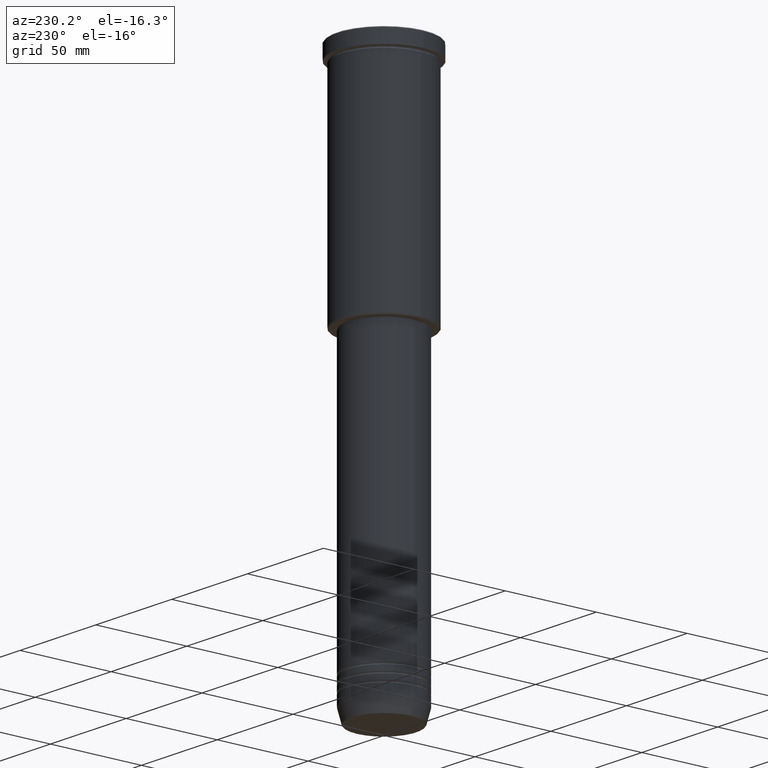
[diagram: clean part render]
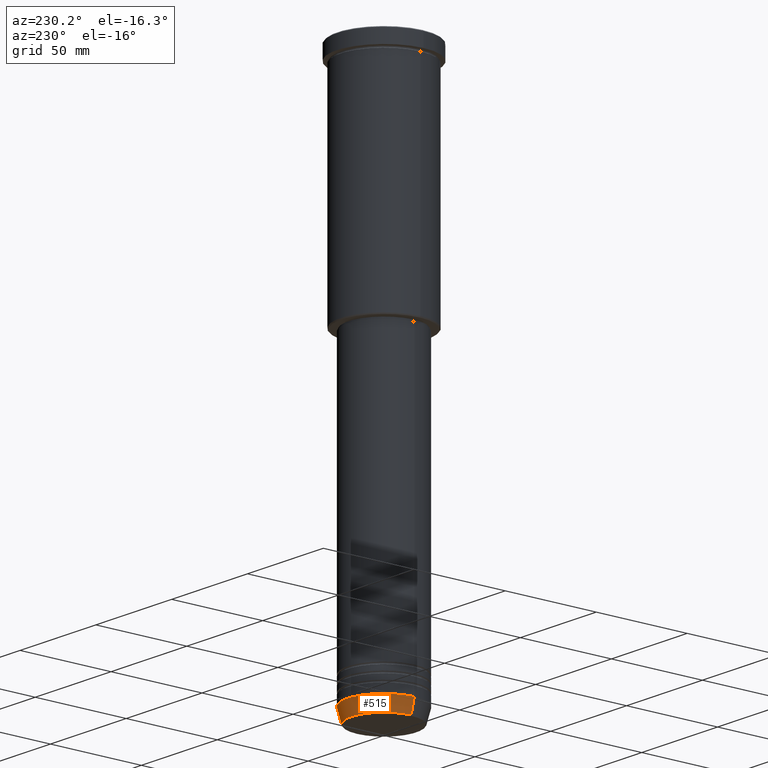
[diagram: same view with one face highlighted and labeled with its STEP entity id]
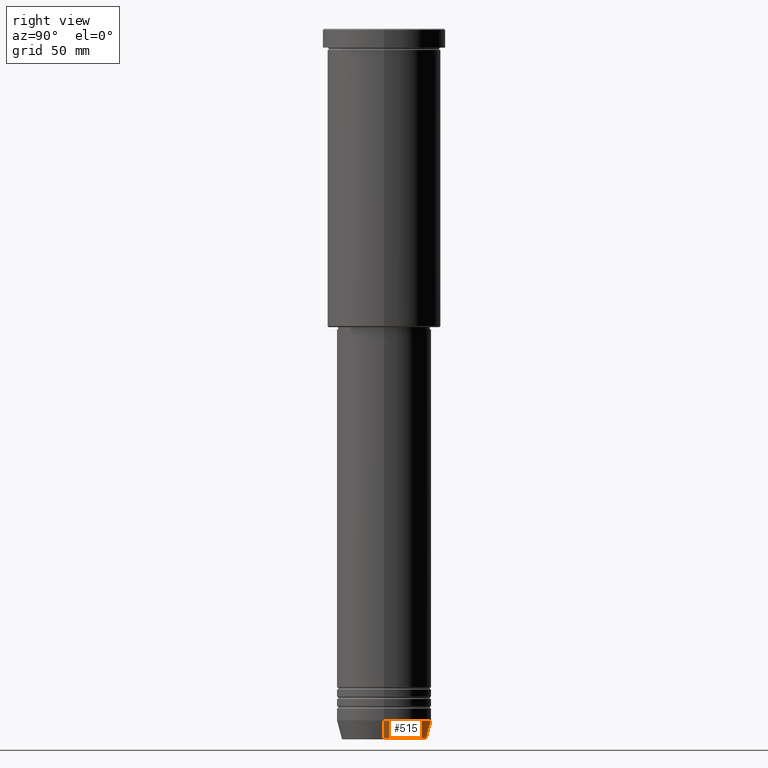
[diagram: same view with one face highlighted and labeled with its STEP entity id]
A machine part, auxiliary view. The second image highlights one B-rep face of the part: STEP entity #515.
A second angle (right view) of the same face is appended — the face is thin or edge-on in the first view.
In plain terms, the highlighted conical surface has half-angle 15 deg.
Its self-contained STEP definition (entity closure, byte-faithful):
#11 = LINE ( 'NONE', #305, #380 ) ;
#52 = EDGE_CURVE ( 'NONE', #358, #414, #973, .T. ) ;
#92 = CARTESIAN_POINT ( 'NONE',  ( 0.000000000000000000, 0.000000000000000000, -299.6294095225512137 ) ) ;
#153 = FACE_OUTER_BOUND ( 'NONE', #1173, .T. ) ;
#163 = EDGE_CURVE ( 'NONE', #617, #690, #11, .T. ) ;
#166 = CARTESIAN_POINT ( 'NONE',  ( 0.000000000000000000, 0.000000000000000000, -292.0000000000000000 ) ) ;
#219 = CONICAL_SURFACE ( 'NONE', #583, 20.00000000000000355, 0.2617993877991499629 ) ;
#228 = DIRECTION ( 'NONE',  ( 1.000000000000000000, 0.000000000000000000, 0.000000000000000000 ) ) ;
#244 = CARTESIAN_POINT ( 'NONE',  ( 20.00000000000000355, 0.000000000000000000, -292.0000000000000000 ) ) ;
#280 = DIRECTION ( 'NONE',  ( -0.000000000000000000, -0.000000000000000000, 1.000000000000000000 ) ) ;
#282 = DIRECTION ( 'NONE',  ( 0.2588190451025212391, 0.000000000000000000, 0.9659258262890680902 ) ) ;
#305 = CARTESIAN_POINT ( 'NONE',  ( 20.00000000000000355, 0.000000000000000000, -292.0000000000000000 ) ) ;
#344 = DIRECTION ( 'NONE',  ( -0.2588190451025212391, 3.169619151431771721E-17, 0.9659258262890680902 ) ) ;
#358 = VERTEX_POINT ( 'NONE', #602 ) ;
#380 = VECTOR ( 'NONE', #282, 1000.000000000000114 ) ;
#382 = EDGE_CURVE ( 'NONE', #690, #414, #665, .T. ) ;
#414 = VERTEX_POINT ( 'NONE', #419 ) ;
#419 = CARTESIAN_POINT ( 'NONE',  ( -20.00000000000000355, 2.449293598294706907E-15, -292.0000000000000000 ) ) ;
#422 = CARTESIAN_POINT ( 'NONE',  ( 0.000000000000000000, 0.000000000000000000, -292.0000000000000000 ) ) ;
#460 = ORIENTED_EDGE ( 'NONE', *, *, #382, .F. ) ;
#515 = ADVANCED_FACE ( 'NONE', ( #153 ), #219, .T. ) ;
#525 = ORIENTED_EDGE ( 'NONE', *, *, #576, .T. ) ;
#544 = AXIS2_PLACEMENT_3D ( 'NONE', #92, #280, #999 ) ;
#571 = VECTOR ( 'NONE', #344, 1000.000000000000114 ) ;
#576 = EDGE_CURVE ( 'NONE', #617, #358, #1059, .T. ) ;
#583 = AXIS2_PLACEMENT_3D ( 'NONE', #166, #719, #993 ) ;
#602 = CARTESIAN_POINT ( 'NONE',  ( -17.95570587970608045, 2.324116685748021371E-15, -299.6294095225512137 ) ) ;
#617 = VERTEX_POINT ( 'NONE', #1102 ) ;
#629 = ORIENTED_EDGE ( 'NONE', *, *, #163, .F. ) ;
#665 = CIRCLE ( 'NONE', #980, 20.00000000000000355 ) ;
#690 = VERTEX_POINT ( 'NONE', #244 ) ;
#719 = DIRECTION ( 'NONE',  ( -0.000000000000000000, -0.000000000000000000, 1.000000000000000000 ) ) ;
#900 = ORIENTED_EDGE ( 'NONE', *, *, #52, .T. ) ;
#973 = LINE ( 'NONE', #1065, #571 ) ;
#980 = AXIS2_PLACEMENT_3D ( 'NONE', #422, #1064, #228 ) ;
#993 = DIRECTION ( 'NONE',  ( 1.000000000000000000, 0.000000000000000000, 0.000000000000000000 ) ) ;
#999 = DIRECTION ( 'NONE',  ( 1.000000000000000000, 0.000000000000000000, 0.000000000000000000 ) ) ;
#1059 = CIRCLE ( 'NONE', #544, 17.95570587970608045 ) ;
#1064 = DIRECTION ( 'NONE',  ( -0.000000000000000000, -0.000000000000000000, 1.000000000000000000 ) ) ;
#1065 = CARTESIAN_POINT ( 'NONE',  ( -20.00000000000000355, 2.449293598294706907E-15, -292.0000000000000000 ) ) ;
#1102 = CARTESIAN_POINT ( 'NONE',  ( 17.95570587970608045, 0.000000000000000000, -299.6294095225512137 ) ) ;
#1173 = EDGE_LOOP ( 'NONE', ( #525, #900, #460, #629 ) ) ;